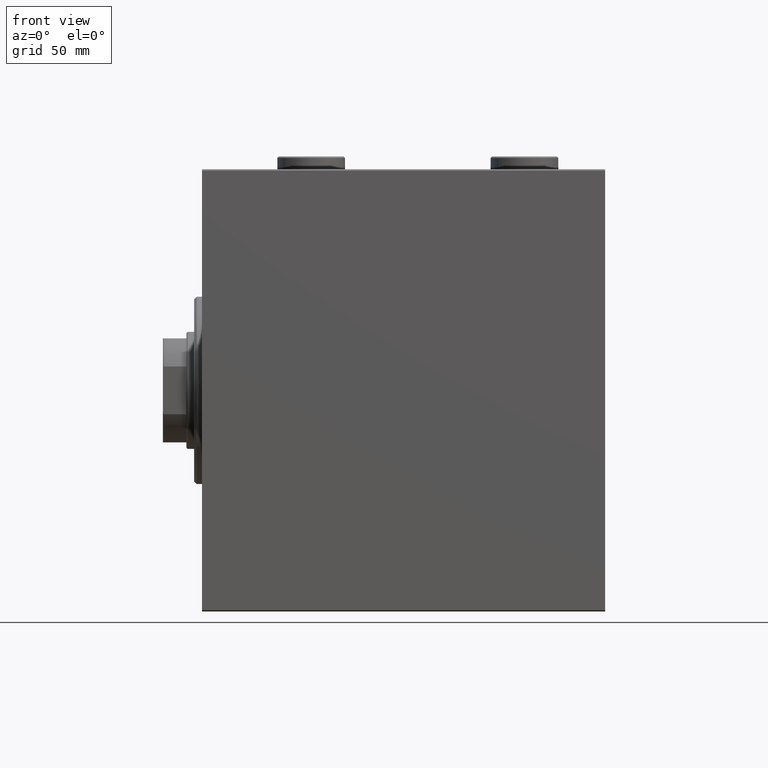
[diagram: clean part render]
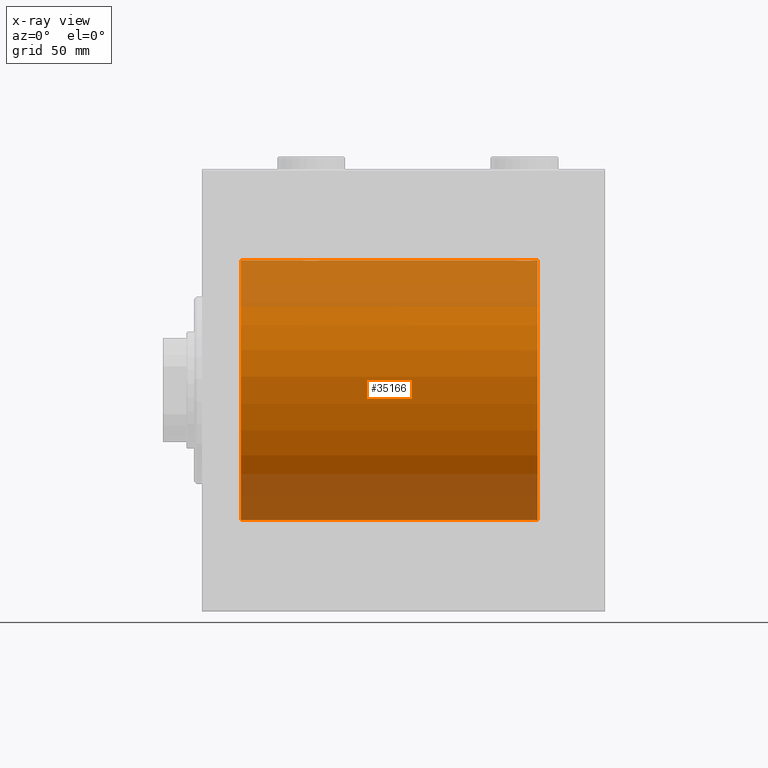
[diagram: x-ray — body ghosted, one internal face saturated and labeled with its STEP entity id]
A machine part, front view, then the same camera in x-ray: the body is ghosted and one INTERNAL B-rep face — a face not visible from any outside direction — is saturated and labeled: STEP entity #35166.
In plain terms, the highlighted cylindrical surface (partial cylindrical patch) has radius 50 mm, axis along (-1, -0, -0).
Its self-contained STEP definition (entity closure, byte-faithful):
#252 = CARTESIAN_POINT ( 'NONE',  ( 38.62480015918034582, -2.597781786597465725, -49.93300953359122474 ) ) ;
#428 = CARTESIAN_POINT ( 'NONE',  ( 128.2500000000000000, 6.123233970923453178E-15, -50.00000000000000000 ) ) ;
#520 = ORIENTED_EDGE ( 'NONE', *, *, #23326, .T. ) ;
#681 = EDGE_CURVE ( 'NONE', #20551, #26469, #33439, .T. ) ;
#923 = CARTESIAN_POINT ( 'NONE',  ( 39.19302168160691480, -3.203153387937319962, -49.89767833571684719 ) ) ;
#1327 = CARTESIAN_POINT ( 'NONE',  ( 127.6893715567938585, -2.128188802142362945, -49.95522967821975158 ) ) ;
#1940 = CARTESIAN_POINT ( 'NONE',  ( 37.75000000000000711, -7.073857814331912646E-15, -50.00000000000000000 ) ) ;
#1966 = ORIENTED_EDGE ( 'NONE', *, *, #18456, .T. ) ;
#2009 = CARTESIAN_POINT ( 'NONE',  ( 119.8875029891966335, -1.108337267831507766, -49.98846998601261760 ) ) ;
#2683 = CARTESIAN_POINT ( 'NONE',  ( 127.3751998408196329, -2.597781786597467057, 49.93300953359122474 ) ) ;
#3009 = EDGE_CURVE ( 'NONE', #19645, #43749, #16785, .T. ) ;
#3034 = CARTESIAN_POINT ( 'NONE',  ( 44.59312720885956338, -3.378657745070617224, -49.88595615988430154 ) ) ;
#3040 = CIRCLE ( 'NONE', #28850, 50.00000000000000000 ) ;
#3378 = CARTESIAN_POINT ( 'NONE',  ( 128.2500000000000284, -0.2808785465865650810, 50.00000000000002132 ) ) ;
#3583 = EDGE_CURVE ( 'NONE', #11962, #19645, #30312, .T. ) ;
#3792 = AXIS2_PLACEMENT_3D ( 'NONE', #5476, #37366, #44523 ) ;
#3941 = CARTESIAN_POINT ( 'NONE',  ( 37.88750298919666903, -1.108337267831496886, -49.98846998601261760 ) ) ;
#4075 = CARTESIAN_POINT ( 'NONE',  ( 37.88568086693992143, -1.101350136471744845, 49.98862054280448319 ) ) ;
#4116 = CARTESIAN_POINT ( 'NONE',  ( 128.1143191330600359, -1.101350136471738850, -49.98862054280448319 ) ) ;
#4203 = VERTEX_POINT ( 'NONE', #4737 ) ;
#4287 = CARTESIAN_POINT ( 'NONE',  ( 38.31062844320614147, -2.128188802142369163, 49.95522967821975158 ) ) ;
#4512 = CARTESIAN_POINT ( 'NONE',  ( 42.55408564880149669, -4.222816005855214883, 49.82138837911247009 ) ) ;
#4612 = CARTESIAN_POINT ( 'NONE',  ( 43.10323296034216156, -4.113647494206476907, -49.83052139214892406 ) ) ;
#4737 = CARTESIAN_POINT ( 'NONE',  ( 15.00000000000000000, 0.000000000000000000, 50.00000000000000000 ) ) ;
#4815 = ORIENTED_EDGE ( 'NONE', *, *, #9274, .T. ) ;
#5201 = CARTESIAN_POINT ( 'NONE',  ( 40.62666563420963683, -4.031616700143192844, 49.83731072121799599 ) ) ;
#5438 = CARTESIAN_POINT ( 'NONE',  ( 45.19921927961282648, -2.811461347331111416, 49.92127983148852621 ) ) ;
#5476 = CARTESIAN_POINT ( 'NONE',  ( 129.0000000000000000, 0.000000000000000000, 0.000000000000000000 ) ) ;
#5702 = DIRECTION ( 'NONE',  ( 0.000000000000000000, 0.000000000000000000, 1.000000000000000000 ) ) ;
#5937 = CARTESIAN_POINT ( 'NONE',  ( 120.6248001591803387, -2.597781786597479936, -49.93300953359122474 ) ) ;
#6378 = CARTESIAN_POINT ( 'NONE',  ( 128.2224263552077730, -0.5587117664567089470, 49.99763378604803421 ) ) ;
#6493 = CARTESIAN_POINT ( 'NONE',  ( 44.81153066515419425, -3.199146701881665500, -49.89793607725460589 ) ) ;
#6597 = CARTESIAN_POINT ( 'NONE',  ( 126.8069783183931065, -3.203153387937318186, 49.89767833571684008 ) ) ;
#6724 = CARTESIAN_POINT ( 'NONE',  ( 129.0000000000000000, 0.000000000000000000, 50.00000000000000000 ) ) ;
#6838 = CARTESIAN_POINT ( 'NONE',  ( 122.8967670396578598, -4.113647494206484012, 49.83052139214893117 ) ) ;
#6960 = CARTESIAN_POINT ( 'NONE',  ( 45.68937155679385853, -2.128188802142358949, -49.95522967821975158 ) ) ;
#7067 = CARTESIAN_POINT ( 'NONE',  ( 126.5882021467620007, -3.382416624899781787, 49.88570010427956447 ) ) ;
#7533 = CARTESIAN_POINT ( 'NONE',  ( 37.75000000000001421, -0.2773743941468532759, 50.00000000000000711 ) ) ;
#7798 = CARTESIAN_POINT ( 'NONE',  ( 124.2839528702669725, -4.249777379711414227, -49.81906655360197789 ) ) ;
#7843 = CARTESIAN_POINT ( 'NONE',  ( 38.31397167878049714, -2.133925816755183114, -49.95498245321557818 ) ) ;
#8016 = CARTESIAN_POINT ( 'NONE',  ( 123.4459143511985246, -4.222816005855221100, -49.82138837911247009 ) ) ;
#8199 = CARTESIAN_POINT ( 'NONE',  ( 46.11249701080335228, -1.108337267831489115, 49.98846998601261760 ) ) ;
#8295 = CARTESIAN_POINT ( 'NONE',  ( 43.88744739392799943, -3.818052230167712668, -49.85412671291930309 ) ) ;
#8519 = CARTESIAN_POINT ( 'NONE',  ( 15.00000000000000000, 6.123233995736766085E-15, -50.00000000000000000 ) ) ;
#8919 = CYLINDRICAL_SURFACE ( 'NONE', #3792, 50.00000000000000000 ) ;
#9274 = EDGE_CURVE ( 'NONE', #20272, #40741, #16923, .T. ) ;
#9383 = CARTESIAN_POINT ( 'NONE',  ( 119.9692020384465678, -1.375411031076060997, -49.98173289062309976 ) ) ;
#9593 = CARTESIAN_POINT ( 'NONE',  ( 121.8686360055384768, -3.687400765141539249, 49.86408552998300081 ) ) ;
#9955 = CARTESIAN_POINT ( 'NONE',  ( 45.20303561951990901, -2.807099414226270184, -49.92152599098507437 ) ) ;
#9963 = LINE ( 'NONE', #15981, #41016 ) ;
#10527 = CARTESIAN_POINT ( 'NONE',  ( 119.7500000000000000, -2.480297015150644268E-23, 50.00000000000000000 ) ) ;
#10552 = ORIENTED_EDGE ( 'NONE', *, *, #3009, .T. ) ;
#11223 = CARTESIAN_POINT ( 'NONE',  ( 38.17899418014773971, -1.881229021238130183, 49.96525240872482954 ) ) ;
#11264 = CARTESIAN_POINT ( 'NONE',  ( 126.1313639944615659, -3.687400765141528591, -49.86408552998298660 ) ) ;
#11311 = CARTESIAN_POINT ( 'NONE',  ( 42.28395287026698668, -4.249777379711400904, -49.81906655360197789 ) ) ;
#11496 = CARTESIAN_POINT ( 'NONE',  ( 125.8874473939280136, -3.818052230167727323, -49.85412671291929598 ) ) ;
#11920 = CARTESIAN_POINT ( 'NONE',  ( 46.25000000000000000, 5.695507803017738218E-16, 50.00000000000000000 ) ) ;
#11962 = VERTEX_POINT ( 'NONE', #41994 ) ;
#12179 = CARTESIAN_POINT ( 'NONE',  ( 122.1178295051555551, -3.820681512513399269, -49.85392475515401145 ) ) ;
#12359 = EDGE_LOOP ( 'NONE', ( #31712, #13344, #10552, #1966, #39775, #44634, #33735, #36706, #4815, #22754, #520, #39158 ) ) ;
#13022 = CARTESIAN_POINT ( 'NONE',  ( 46.25000000000000000, 6.123233970928580774E-15, -50.00000000000000000 ) ) ;
#13081 = CARTESIAN_POINT ( 'NONE',  ( 120.1816075101212675, -1.886522330773437339, -49.96505190380065642 ) ) ;
#13290 = CARTESIAN_POINT ( 'NONE',  ( 128.1124970108033096, -1.108337267831486006, 49.98846998601263181 ) ) ;
#13344 = ORIENTED_EDGE ( 'NONE', *, *, #3583, .T. ) ;
#13423 = CARTESIAN_POINT ( 'NONE',  ( 46.22310752799000966, -0.5531336717328987351, -49.99769193709643389 ) ) ;
#13425 = DIRECTION ( 'NONE',  ( -1.000000000000000000, -0.000000000000000000, -0.000000000000000000 ) ) ;
#13473 = CIRCLE ( 'NONE', #15670, 50.00000000000000000 ) ;
#13988 = CARTESIAN_POINT ( 'NONE',  ( 120.6211828273626026, -2.593114840406131716, 49.93325460257638326 ) ) ;
#14409 = DIRECTION ( 'NONE',  ( -1.000000000000000000, -0.000000000000000000, -0.000000000000000000 ) ) ;
#14725 = CARTESIAN_POINT ( 'NONE',  ( 126.8115306651541658, -3.199146701881681487, -49.89793607725462010 ) ) ;
#14770 = CARTESIAN_POINT ( 'NONE',  ( 40.90262382120964446, -4.115209769591110067, -49.83039196709102470 ) ) ;
#14913 = CARTESIAN_POINT ( 'NONE',  ( 39.18846933484581285, -3.199146701881677934, 49.89793607725460589 ) ) ;
#15140 = CARTESIAN_POINT ( 'NONE',  ( 43.09737617879038396, -4.115209769591117173, 49.83039196709102470 ) ) ;
#15226 = CARTESIAN_POINT ( 'NONE',  ( 37.75000000000001421, -0.2808785465865695774, -50.00000000000001421 ) ) ;
#15356 = CARTESIAN_POINT ( 'NONE',  ( 44.80697831839309941, -3.203153387937326180, 49.89767833571684719 ) ) ;
#15550 = VERTEX_POINT ( 'NONE', #17264 ) ;
#15670 = AXIS2_PLACEMENT_3D ( 'NONE', #28259, #45381, #41670 ) ;
#15823 = CARTESIAN_POINT ( 'NONE',  ( 41.44002132304353125, -4.222042462213131842, 49.82145436824653473 ) ) ;
#15871 = CARTESIAN_POINT ( 'NONE',  ( 119.7775736447921986, -0.5587117664567315956, -49.99763378604802000 ) ) ;
#15981 = CARTESIAN_POINT ( 'NONE',  ( 129.0000000000000000, 0.000000000000000000, 50.00000000000000000 ) ) ;
#16760 = CARTESIAN_POINT ( 'NONE',  ( 120.3106284432061273, -2.128188802142369163, 49.95522967821973737 ) ) ;
#16785 = B_SPLINE_CURVE_WITH_KNOTS ( 'NONE', 3,
 ( #428, #29510, #32516, #4116, #43164, #25127, #1327, #39241, #18189, #14725, #42933, #11264, #11496, #25355, #39690, #39468, #7798, #21893, #8016, #22112, #36222, #12179, #19097, #29746, #27181, #37589, #5937, #44302, #13081, #9383, #2009, #15871, #43846, #30190 ),
 .UNSPECIFIED., .F., .F.,
 ( 4, 2, 2, 2, 2, 2, 2, 2, 2, 2, 2, 2, 2, 2, 2, 2, 4 ),
 ( 0.01329343152928756308, 0.01412407817529634686, 0.01495472482130513238, 0.01578537146731391616, 0.01661601811332270168, 0.01744666475933148719, 0.01827731140534026924, 0.01910795805134905476, 0.01993860469735783680, 0.02076925134336662232, 0.02159989798937540784, 0.02243054463538419335, 0.02326119128139297540, 0.02409183792740176092, 0.02492248457341054296, 0.02575313121941932848, 0.02658377786542811400 ),
 .UNSPECIFIED. ) ;
#16923 = B_SPLINE_CURVE_WITH_KNOTS ( 'NONE', 3,
 ( #42443, #7533, #35739, #4075, #42891, #11223, #4287, #18363, #32471, #14913, #43121, #22063, #29696, #5201, #33141, #15823, #25991, #26223, #4512, #15140, #36176, #37094, #39869, #19283, #15356, #5438, #29929, #29242, #33378, #18600, #8199, #29455, #32704, #36633 ),
 .UNSPECIFIED., .F., .F.,
 ( 4, 2, 2, 2, 2, 2, 2, 2, 2, 2, 2, 2, 2, 2, 2, 2, 4 ),
 ( 0.01329343152928754226, 0.01412407817529632605, 0.01495472482130511156, 0.01578537146731389534, 0.01661601811332268086, 0.01744666475933146638, 0.01827731140534024842, 0.01910795805134903394, 0.01993860469735781599, 0.02076925134336660150, 0.02159989798937538702, 0.02243054463538417254, 0.02326119128139295458, 0.02409183792740174010, 0.02492248457341052215, 0.02575313121941930766, 0.02658377786542809318 ),
 .UNSPECIFIED. ) ;
#17092 = EDGE_CURVE ( 'NONE', #11962, #30450, #13473, .T. ) ;
#17223 = CARTESIAN_POINT ( 'NONE',  ( 120.1789941801477539, -1.881229021238129073, 49.96525240872482243 ) ) ;
#17264 = CARTESIAN_POINT ( 'NONE',  ( 119.7500000000000000, -2.480297015150644268E-23, 50.00000000000000000 ) ) ;
#17416 = EDGE_CURVE ( 'NONE', #15550, #40741, #45555, .T. ) ;
#17451 = CARTESIAN_POINT ( 'NONE',  ( 120.7969643804801052, -2.807099414226272405, 49.92152599098507437 ) ) ;
#17801 = EDGE_CURVE ( 'NONE', #30450, #25709, #27771, .T. ) ;
#17803 = DIRECTION ( 'NONE',  ( -1.000000000000000000, -0.000000000000000000, -0.000000000000000000 ) ) ;
#17998 = CARTESIAN_POINT ( 'NONE',  ( 129.0000000000000000, 0.000000000000000000, 50.00000000000000000 ) ) ;
#18189 = CARTESIAN_POINT ( 'NONE',  ( 127.2030356195199232, -2.807099414226285727, -49.92152599098507437 ) ) ;
#18363 = CARTESIAN_POINT ( 'NONE',  ( 38.62118282736263097, -2.593114840406133492, 49.93325460257641168 ) ) ;
#18456 = EDGE_CURVE ( 'NONE', #43749, #20551, #42147, .T. ) ;
#18460 = CARTESIAN_POINT ( 'NONE',  ( 40.11782950515556934, -3.820681512513381506, -49.85392475515401145 ) ) ;
#18600 = CARTESIAN_POINT ( 'NONE',  ( 46.03079796155342507, -1.375411031076046786, 49.98173289062309976 ) ) ;
#18693 = CARTESIAN_POINT ( 'NONE',  ( 42.55997867695648296, -4.222042462213118519, -49.82145436824653473 ) ) ;
#19097 = CARTESIAN_POINT ( 'NONE',  ( 121.8736835512492149, -3.690299572754727642, -49.86386974736159772 ) ) ;
#19216 = CARTESIAN_POINT ( 'NONE',  ( 129.0000000000000000, 6.123233995736766085E-15, -50.00000000000000000 ) ) ;
#19283 = CARTESIAN_POINT ( 'NONE',  ( 44.58820214676200777, -3.382416624899783564, 49.88570010427956447 ) ) ;
#19556 = CARTESIAN_POINT ( 'NONE',  ( 15.00000000000000000, 0.000000000000000000, 0.000000000000000000 ) ) ;
#19645 = VERTEX_POINT ( 'NONE', #38702 ) ;
#20272 = VERTEX_POINT ( 'NONE', #38012 ) ;
#20456 = CARTESIAN_POINT ( 'NONE',  ( 119.7768924720099903, -0.5531336717329051744, 49.99769193709643389 ) ) ;
#20551 = VERTEX_POINT ( 'NONE', #13022 ) ;
#20577 = CARTESIAN_POINT ( 'NONE',  ( 46.25000000000000000, 6.123233970928580774E-15, -50.00000000000000000 ) ) ;
#20685 = CARTESIAN_POINT ( 'NONE',  ( 127.8183924898787183, -1.886522330773413358, 49.96505190380066352 ) ) ;
#21051 = CARTESIAN_POINT ( 'NONE',  ( 44.13136399446156588, -3.687400765141522818, -49.86408552998298660 ) ) ;
#21264 = DIRECTION ( 'NONE',  ( -1.000000000000000000, -0.000000000000000000, -0.000000000000000000 ) ) ;
#21494 = CARTESIAN_POINT ( 'NONE',  ( 39.87368355124922203, -3.690299572754720980, -49.86386974736159772 ) ) ;
#21893 = CARTESIAN_POINT ( 'NONE',  ( 123.7227507296208415, -4.250219976861655979, -49.81902879621013369 ) ) ;
#22063 = CARTESIAN_POINT ( 'NONE',  ( 39.86863600553844122, -3.687400765141535253, 49.86408552998298660 ) ) ;
#22112 = CARTESIAN_POINT ( 'NONE',  ( 122.9026238212096303, -4.115209769591122502, -49.83039196709102470 ) ) ;
#22163 = CARTESIAN_POINT ( 'NONE',  ( 41.44591435119853173, -4.222816005855206001, -49.82138837911246299 ) ) ;
#22754 = ORIENTED_EDGE ( 'NONE', *, *, #17416, .F. ) ;
#23106 = VECTOR ( 'NONE', #14409, 1000.000000000000000 ) ;
#23326 = EDGE_CURVE ( 'NONE', #15550, #25709, #44839, .T. ) ;
#23921 = CARTESIAN_POINT ( 'NONE',  ( 123.4400213230435099, -4.222042462213122072, 49.82145436824654183 ) ) ;
#24384 = CARTESIAN_POINT ( 'NONE',  ( 127.1992192796128336, -2.811461347331102534, 49.92127983148852621 ) ) ;
#24515 = CARTESIAN_POINT ( 'NONE',  ( 46.11431913306007857, -1.101350136471736629, -49.98862054280448319 ) ) ;
#24621 = CARTESIAN_POINT ( 'NONE',  ( 121.1884693348457915, -3.199146701881667276, 49.89793607725462010 ) ) ;
#25127 = CARTESIAN_POINT ( 'NONE',  ( 127.8210058198522603, -1.881229021238124632, -49.96525240872482954 ) ) ;
#25190 = CARTESIAN_POINT ( 'NONE',  ( 129.0000000000000000, 0.000000000000000000, 50.00000000000000000 ) ) ;
#25355 = CARTESIAN_POINT ( 'NONE',  ( 125.3733343657903418, -4.031616700143195509, -49.83731072121799599 ) ) ;
#25709 = VERTEX_POINT ( 'NONE', #35948 ) ;
#25857 = CARTESIAN_POINT ( 'NONE',  ( 41.72275072962083442, -4.250219976861640880, -49.81902879621014080 ) ) ;
#25991 = CARTESIAN_POINT ( 'NONE',  ( 41.71604712973302753, -4.249777379711412451, 49.81906655360197789 ) ) ;
#26223 = CARTESIAN_POINT ( 'NONE',  ( 42.27724927037917979, -4.250219976861652427, 49.81902879621013369 ) ) ;
#26469 = VERTEX_POINT ( 'NONE', #1940 ) ;
#26615 = DIRECTION ( 'NONE',  ( -1.000000000000000000, -0.000000000000000000, -0.000000000000000000 ) ) ;
#26752 = VERTEX_POINT ( 'NONE', #8519 ) ;
#27181 = CARTESIAN_POINT ( 'NONE',  ( 121.1930216816068935, -3.203153387937336394, -49.89767833571684719 ) ) ;
#27640 = CARTESIAN_POINT ( 'NONE',  ( 124.5540856488014754, -4.222816005855207777, 49.82138837911247720 ) ) ;
#27771 = LINE ( 'NONE', #25190, #45253 ) ;
#27883 = EDGE_CURVE ( 'NONE', #26469, #26752, #38381, .T. ) ;
#28090 = CARTESIAN_POINT ( 'NONE',  ( 119.8856808669399072, -1.101350136471743735, 49.98862054280448319 ) ) ;
#28259 = CARTESIAN_POINT ( 'NONE',  ( 129.0000000000000000, 0.000000000000000000, 0.000000000000000000 ) ) ;
#28586 = EDGE_CURVE ( 'NONE', #20272, #4203, #9963, .T. ) ;
#28653 = CARTESIAN_POINT ( 'NONE',  ( 40.63289352445426772, -4.033756670430848068, -49.83713703490974467 ) ) ;
#28850 = AXIS2_PLACEMENT_3D ( 'NONE', #19556, #41052, #5702 ) ;
#29242 = CARTESIAN_POINT ( 'NONE',  ( 45.68602832121950286, -2.133925816755187110, 49.95498245321557818 ) ) ;
#29455 = CARTESIAN_POINT ( 'NONE',  ( 46.22242635520780851, -0.5587117664567118336, 49.99763378604802000 ) ) ;
#29510 = CARTESIAN_POINT ( 'NONE',  ( 128.2500000000000000, -0.2773743941468452823, -50.00000000000000711 ) ) ;
#29696 = CARTESIAN_POINT ( 'NONE',  ( 40.11255260607201478, -3.818052230167724215, 49.85412671291930309 ) ) ;
#29746 = CARTESIAN_POINT ( 'NONE',  ( 121.4117978532379709, -3.382416624899787561, -49.88570010427956447 ) ) ;
#29929 = CARTESIAN_POINT ( 'NONE',  ( 45.37519984081967550, -2.597781786597470610, 49.93300953359122474 ) ) ;
#30190 = CARTESIAN_POINT ( 'NONE',  ( 119.7499999999999858, -1.552464266337571260E-14, -50.00000000000000000 ) ) ;
#30197 = VECTOR ( 'NONE', #26615, 1000.000000000000000 ) ;
#30312 = LINE ( 'NONE', #19216, #30197 ) ;
#30450 = VERTEX_POINT ( 'NONE', #17998 ) ;
#30644 = CARTESIAN_POINT ( 'NONE',  ( 119.7500000000000000, -0.2773743941468521657, 50.00000000000001421 ) ) ;
#31093 = CARTESIAN_POINT ( 'NONE',  ( 122.1125526060720148, -3.818052230167721994, 49.85412671291930309 ) ) ;
#31448 = CARTESIAN_POINT ( 'NONE',  ( 46.25000000000000000, -0.2773743941468464480, -50.00000000000000711 ) ) ;
#31552 = CARTESIAN_POINT ( 'NONE',  ( 128.0307979615534464, -1.375411031076037460, 49.98173289062309976 ) ) ;
#31712 = ORIENTED_EDGE ( 'NONE', *, *, #17092, .F. ) ;
#31900 = CARTESIAN_POINT ( 'NONE',  ( 129.0000000000000000, 6.123233995736766085E-15, -50.00000000000000000 ) ) ;
#32471 = CARTESIAN_POINT ( 'NONE',  ( 38.79696438048009099, -2.807099414226281731, 49.92152599098507437 ) ) ;
#32516 = CARTESIAN_POINT ( 'NONE',  ( 128.2231075279900381, -0.5531336717328986241, -49.99769193709643389 ) ) ;
#32704 = CARTESIAN_POINT ( 'NONE',  ( 46.25000000000001421, -0.2808785465865648034, 50.00000000000001421 ) ) ;
#32796 = CARTESIAN_POINT ( 'NONE',  ( 37.75000000000000711, -7.073857814331912646E-15, -50.00000000000000000 ) ) ;
#33141 = CARTESIAN_POINT ( 'NONE',  ( 40.89676703965783844, -4.113647494206490229, 49.83052139214891696 ) ) ;
#33378 = CARTESIAN_POINT ( 'NONE',  ( 45.81839248987871827, -1.886522330773423572, 49.96505190380066352 ) ) ;
#33439 = B_SPLINE_CURVE_WITH_KNOTS ( 'NONE', 3,
 ( #20577, #31448, #13423, #24515, #34922, #34681, #6960, #41618, #9955, #6493, #3034, #21051, #8295, #39965, #4612, #18693, #11311, #25857, #22163, #14770, #28653, #18460, #21494, #43428, #923, #35604, #252, #7843, #42536, #42981, #3941, #39062, #15226, #32796 ),
 .UNSPECIFIED., .F., .F.,
 ( 4, 2, 2, 2, 2, 2, 2, 2, 2, 2, 2, 2, 2, 2, 2, 2, 4 ),
 ( 0.01329343152928756308, 0.01412407817529634686, 0.01495472482130513064, 0.01578537146731391269, 0.01661601811332269821, 0.01744666475933148025, 0.01827731140534026577, 0.01910795805134904782, 0.01993860469735782986, 0.02076925134336661538, 0.02159989798937540090, 0.02243054463538418294, 0.02326119128139296499, 0.02409183792740175051, 0.02492248457341053255, 0.02575313121941931460, 0.02658377786542810012 ),
 .UNSPECIFIED. ) ;
#33735 = ORIENTED_EDGE ( 'NONE', *, *, #35178, .T. ) ;
#34338 = CARTESIAN_POINT ( 'NONE',  ( 127.6860283212194958, -2.133925816755182225, 49.95498245321556396 ) ) ;
#34681 = CARTESIAN_POINT ( 'NONE',  ( 45.82100581985226739, -1.881229021238118859, -49.96525240872482954 ) ) ;
#34922 = CARTESIAN_POINT ( 'NONE',  ( 46.03272642097311973, -1.369753890039645983, -49.98188917176553048 ) ) ;
#35035 = CARTESIAN_POINT ( 'NONE',  ( 122.6266656342096582, -4.031616700143189291, 49.83731072121800310 ) ) ;
#35166 = ADVANCED_FACE ( 'NONE', ( #36895 ), #8919, .F. ) ;
#35178 = EDGE_CURVE ( 'NONE', #26752, #4203, #3040, .T. ) ;
#35604 = CARTESIAN_POINT ( 'NONE',  ( 38.80078072038717352, -2.811461347331107419, -49.92127983148852621 ) ) ;
#35739 = CARTESIAN_POINT ( 'NONE',  ( 37.77689247201000455, -0.5531336717329051744, 49.99769193709643389 ) ) ;
#35812 = VECTOR ( 'NONE', #13425, 1000.000000000000000 ) ;
#35948 = CARTESIAN_POINT ( 'NONE',  ( 128.2499999999999716, 4.902412868109812945E-15, 50.00000000000000000 ) ) ;
#36176 = CARTESIAN_POINT ( 'NONE',  ( 43.36710647554575360, -4.033756670430856062, 49.83713703490974467 ) ) ;
#36222 = CARTESIAN_POINT ( 'NONE',  ( 122.6328935244542606, -4.033756670430865832, -49.83713703490974467 ) ) ;
#36633 = CARTESIAN_POINT ( 'NONE',  ( 46.25000000000000000, 5.695507803017738218E-16, 50.00000000000000000 ) ) ;
#36706 = ORIENTED_EDGE ( 'NONE', *, *, #28586, .F. ) ;
#36895 = FACE_OUTER_BOUND ( 'NONE', #12359, .T. ) ;
#37094 = CARTESIAN_POINT ( 'NONE',  ( 43.88217049484443777, -3.820681512513388611, 49.85392475515401145 ) ) ;
#37366 = DIRECTION ( 'NONE',  ( -1.000000000000000000, -0.000000000000000000, -0.000000000000000000 ) ) ;
#37589 = CARTESIAN_POINT ( 'NONE',  ( 120.8007807203871522, -2.811461347331123406, -49.92127983148851200 ) ) ;
#37808 = CARTESIAN_POINT ( 'NONE',  ( 125.8821704948444022, -3.820681512513372624, 49.85392475515399724 ) ) ;
#38012 = CARTESIAN_POINT ( 'NONE',  ( 37.75000000000000711, -2.480809774739037926E-23, 50.00000000000000000 ) ) ;
#38381 = LINE ( 'NONE', #31900, #35812 ) ;
#38702 = CARTESIAN_POINT ( 'NONE',  ( 128.2500000000000000, 6.123233970923453178E-15, -50.00000000000000000 ) ) ;
#38732 = CARTESIAN_POINT ( 'NONE',  ( 119.9672735790268376, -1.369753890039655975, 49.98188917176552337 ) ) ;
#38916 = CARTESIAN_POINT ( 'NONE',  ( 129.0000000000000000, 6.123233995736766085E-15, -50.00000000000000000 ) ) ;
#39062 = CARTESIAN_POINT ( 'NONE',  ( 37.77757364479220570, -0.5587117664567219366, -49.99763378604802000 ) ) ;
#39158 = ORIENTED_EDGE ( 'NONE', *, *, #17801, .F. ) ;
#39241 = CARTESIAN_POINT ( 'NONE',  ( 127.3788171726373548, -2.593114840406129940, -49.93325460257641168 ) ) ;
#39468 = CARTESIAN_POINT ( 'NONE',  ( 124.5599786769564474, -4.222042462213132730, -49.82145436824653473 ) ) ;
#39690 = CARTESIAN_POINT ( 'NONE',  ( 125.1032329603421545, -4.113647494206490229, -49.83052139214891696 ) ) ;
#39775 = ORIENTED_EDGE ( 'NONE', *, *, #681, .T. ) ;
#39869 = CARTESIAN_POINT ( 'NONE',  ( 44.12631644875080639, -3.690299572754724533, 49.86386974736159772 ) ) ;
#39965 = CARTESIAN_POINT ( 'NONE',  ( 43.37333436579036317, -4.031616700143180410, -49.83731072121798888 ) ) ;
#40741 = VERTEX_POINT ( 'NONE', #11920 ) ;
#40796 = VECTOR ( 'NONE', #21264, 1000.000000000000000 ) ;
#40949 = DIRECTION ( 'NONE',  ( -1.000000000000000000, -0.000000000000000000, -0.000000000000000000 ) ) ;
#41016 = VECTOR ( 'NONE', #40949, 1000.000000000000000 ) ;
#41052 = DIRECTION ( 'NONE',  ( -1.000000000000000000, 0.000000000000000000, 0.000000000000000000 ) ) ;
#41264 = CARTESIAN_POINT ( 'NONE',  ( 125.0973761787903555, -4.115209769591107403, 49.83039196709103891 ) ) ;
#41500 = CARTESIAN_POINT ( 'NONE',  ( 125.3671064755457536, -4.033756670430841851, 49.83713703490973757 ) ) ;
#41618 = CARTESIAN_POINT ( 'NONE',  ( 45.37881717263736192, -2.593114840406122390, -49.93325460257641168 ) ) ;
#41670 = DIRECTION ( 'NONE',  ( 0.000000000000000000, 0.000000000000000000, 1.000000000000000000 ) ) ;
#41953 = CARTESIAN_POINT ( 'NONE',  ( 128.2499999999999716, 4.902412868109812945E-15, 50.00000000000000000 ) ) ;
#41994 = CARTESIAN_POINT ( 'NONE',  ( 129.0000000000000000, 6.123233995736766085E-15, -50.00000000000000000 ) ) ;
#42147 = LINE ( 'NONE', #38916, #23106 ) ;
#42191 = CARTESIAN_POINT ( 'NONE',  ( 126.1263164487507709, -3.690299572754721869, 49.86386974736159061 ) ) ;
#42443 = CARTESIAN_POINT ( 'NONE',  ( 37.75000000000000711, -2.480809774739037926E-23, 50.00000000000000000 ) ) ;
#42536 = CARTESIAN_POINT ( 'NONE',  ( 38.18160751012128884, -1.886522330773416911, -49.96505190380066352 ) ) ;
#42891 = CARTESIAN_POINT ( 'NONE',  ( 37.96727357902688738, -1.369753890039657085, 49.98188917176553048 ) ) ;
#42933 = CARTESIAN_POINT ( 'NONE',  ( 126.5931272088595705, -3.378657745070619445, -49.88595615988430154 ) ) ;
#42981 = CARTESIAN_POINT ( 'NONE',  ( 37.96920203844656783, -1.375411031076042789, -49.98173289062309976 ) ) ;
#43121 = CARTESIAN_POINT ( 'NONE',  ( 39.40687279114045083, -3.378657745070629659, 49.88595615988430154 ) ) ;
#43164 = CARTESIAN_POINT ( 'NONE',  ( 128.0327264209731197, -1.369753890039650202, -49.98188917176553048 ) ) ;
#43428 = CARTESIAN_POINT ( 'NONE',  ( 39.41179785323799933, -3.382416624899781787, -49.88570010427956447 ) ) ;
#43443 = CARTESIAN_POINT ( 'NONE',  ( 119.7499999999999858, -1.552464266337571260E-14, -50.00000000000000000 ) ) ;
#43749 = VERTEX_POINT ( 'NONE', #43443 ) ;
#43846 = CARTESIAN_POINT ( 'NONE',  ( 119.7499999999999858, -0.2808785465865775155, -50.00000000000001421 ) ) ;
#44302 = CARTESIAN_POINT ( 'NONE',  ( 120.3139716787804758, -2.133925816755196880, -49.95498245321555686 ) ) ;
#44523 = DIRECTION ( 'NONE',  ( 0.000000000000000000, 0.000000000000000000, 1.000000000000000000 ) ) ;
#44634 = ORIENTED_EDGE ( 'NONE', *, *, #27883, .T. ) ;
#44746 = CARTESIAN_POINT ( 'NONE',  ( 123.7160471297329991, -4.249777379711403569, 49.81906655360197789 ) ) ;
#44839 = B_SPLINE_CURVE_WITH_KNOTS ( 'NONE', 3,
 ( #10527, #30644, #20456, #28090, #38732, #17223, #16760, #13988, #17451, #24621, #45666, #9593, #31093, #35035, #6838, #23921, #44746, #44966, #27640, #41264, #41500, #37808, #42191, #7067, #6597, #24384, #2683, #34338, #20685, #31552, #13290, #6378, #3378, #41953 ),
 .UNSPECIFIED., .F., .F.,
 ( 4, 2, 2, 2, 2, 2, 2, 2, 2, 2, 2, 2, 2, 2, 2, 2, 4 ),
 ( 0.01329343152928749543, 0.01412407817529626013, 0.01495472482130502483, 0.01578537146731378779, 0.01661601811332255249, 0.01744666475933131719, 0.01827731140534008189, 0.01910795805134884659, 0.01993860469735761129, 0.02076925134336637599, 0.02159989798937517885, 0.02243054463538398519, 0.02326119128139279152, 0.02409183792740159785, 0.02492248457341040419, 0.02575313121941921052, 0.02658377786542801685 ),
 .UNSPECIFIED. ) ;
#44966 = CARTESIAN_POINT ( 'NONE',  ( 124.2772492703791727, -4.250219976861645321, 49.81902879621014790 ) ) ;
#45253 = VECTOR ( 'NONE', #17803, 1000.000000000000000 ) ;
#45381 = DIRECTION ( 'NONE',  ( -1.000000000000000000, 0.000000000000000000, 0.000000000000000000 ) ) ;
#45555 = LINE ( 'NONE', #6724, #40796 ) ;
#45666 = CARTESIAN_POINT ( 'NONE',  ( 121.4068727911404437, -3.378657745070632767, 49.88595615988429444 ) ) ;